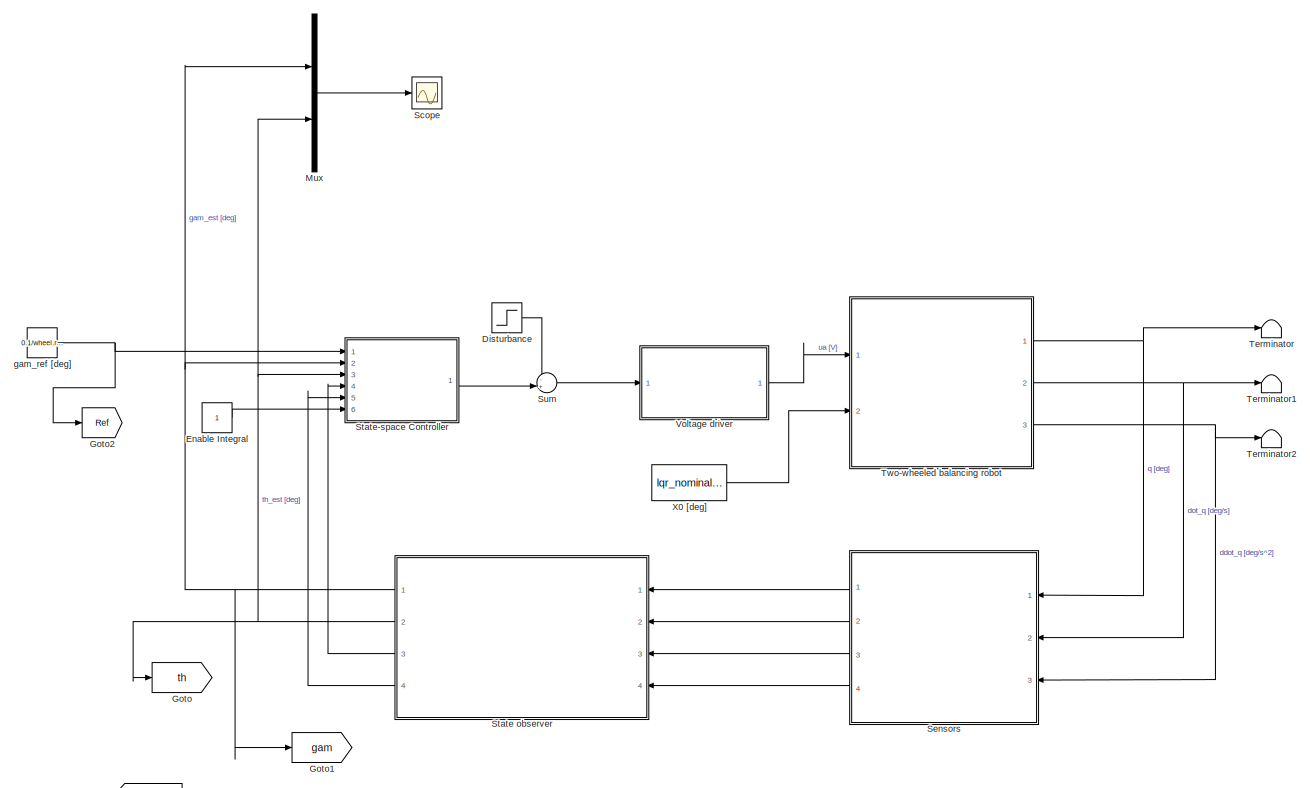
[diagram: root canvas - part 1/2, most of the canvas]
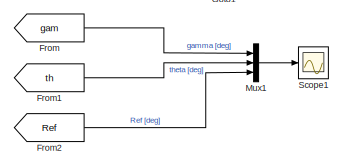
[diagram: root canvas - part 2/2, bottom left region]
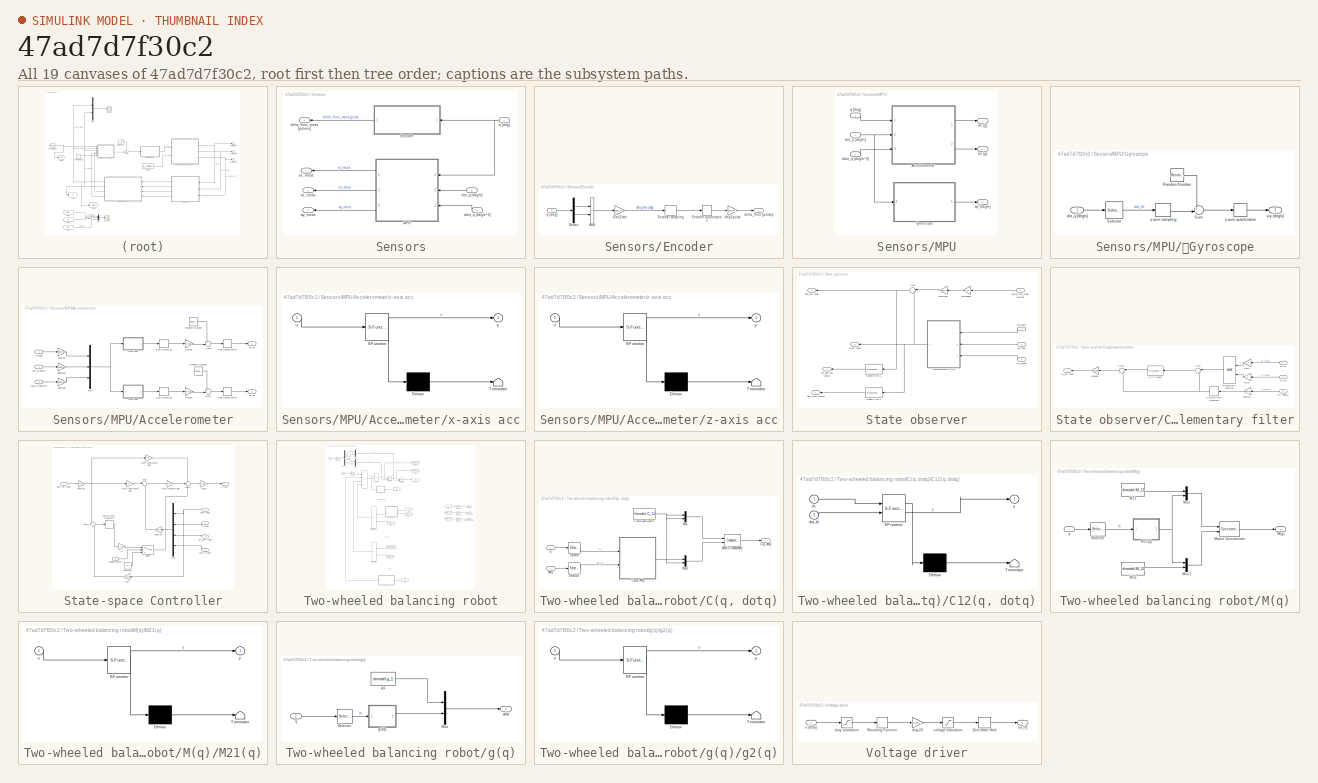
[diagram: thumbnail index - all 19 canvases of the model, root first then tree order]
MODEL slx_47ad7d7f30c2
KIND model
CONFIG AbsTol = auto
CONFIG EnableMultiTasking = off
CONFIG FixedStep = Ts
CONFIG MaxStep = auto
CONFIG MinStep = auto
CONFIG RelTol = 1e-3
CONFIG SampleTimeConstraint = Unconstrained
CONFIG SolverName = FixedStepAuto
CONFIG StartTime = 0.0
CONFIG StopTime = 20
BLOCK [Step] Disturbance
  After = 5/drv.duty2V
  SampleTime = 0
  Time = 10
BLOCK [Constant] Enable Integral
BLOCK [From] From
  GotoTag = gam
BLOCK [From] From1
  GotoTag = th
BLOCK [From] From2
  GotoTag = Ref
BLOCK [Goto] Goto
  GotoTag = th
BLOCK [Goto] Goto1
  GotoTag = gam
BLOCK [Goto] Goto2
  GotoTag = Ref
BLOCK [Mux] Mux
  DisplayOption = bar
  Inputs = 2
  Ports = [2, 1]
BLOCK [Mux] Mux1
  DisplayOption = bar
  Inputs = 3
  Ports = [3, 1]
BLOCK [Scope] Scope
  Floating = off
  NumInputPorts = 1
  Ports = [1]
  ScopeSpecificationString = Simulink.scopes.TimeScopeBlockCfg('CurrentConfiguration', extmgr.ConfigurationSet(extmgr.Configuration('Core','General UI',true),extmgr.Configuration('Core','Source UI',true),extmgr.Configuration('Sources','WiredSimulink',true),extmgr.Configuration('Visuals','Time Domain',true,'SerializedDisplays',{struct('MinYLimReal','-153.10536','MaxYLimReal','1324.52882','YLabelReal','','MinYLimMag',' 0.00000'...<+1457ch>
BLOCK [Scope] Scope1
  Floating = off
  NumInputPorts = 1
  Ports = [1]
  ScopeSpecificationString = Simulink.scopes.TimeScopeBlockCfg('CurrentConfiguration', extmgr.ConfigurationSet(extmgr.Configuration('Core','General UI',true),extmgr.Configuration('Core','Source UI',true),extmgr.Configuration('Sources','WiredSimulink',true,'DataLoggingVariableName','simres','DataLogging',true,'DataLoggingSaveFormat','StructureWithTime'),extmgr.Configuration('Visuals','Time Domain',true,'SerializedDisplays',{st...<+1620ch>
BLOCK [SubSystem] Sensors
  NameLocation = top
  Ports = [3, 4]
  RequestExecContextInheritance = off
BLOCK [SubSystem] Sensors/Encoder
  NameLocation = top
  Ports = [1, 1]
  RequestExecContextInheritance = off
BLOCK [Sum] Sensors/Encoder/Add
  IconShape = rectangular
  Inputs = +-
  Ports = [2, 1]
BLOCK [Demux] Sensors/Encoder/Demux
  Outputs = 2
  Ports = [1, 2]
BLOCK [Quantizer] Sensors/Encoder/Encoder quantization
  QuantizationInterval = sens.enc.pulse2deg
BLOCK [ZeroOrderHold] Sensors/Encoder/Encoder sampling
  SampleTime = Ts
BLOCK [Gain] Sensors/Encoder/deg2pulse
  Gain = sens.enc.deg2pulse
BLOCK [Outport] Sensors/Encoder/delta_throt [pulses]
BLOCK [Gain] Sensors/Encoder/load2mot
  Gain = gbox.N
BLOCK [Inport] Sensors/Encoder/q [deg]
BLOCK [SubSystem] Sensors/MPU
  NameLocation = top
  Ports = [3, 3]
  RequestExecContextInheritance = off
BLOCK [SubSystem] Sensors/MPU/	Gyroscope
  Ports = [1, 1]
  RequestExecContextInheritance = off
BLOCK [RandomNumber] Sensors/MPU/	Gyroscope/Random Number
  SampleTime = Ts
  Variance = sens.mpu.gyro.noisevar
BLOCK [Selector] Sensors/MPU/	Gyroscope/Selector
  IndexOptions = Starting index (dialog)
  Indices = 2
  InputPortWidth = 2
  OutputSizes = 1
  Ports = [1, 1]
BLOCK [Sum] Sensors/MPU/	Gyroscope/Sum
  Inputs = ++|
  Ports = [2, 1]
BLOCK [Inport] Sensors/MPU/	Gyroscope/dot_q [deg//s]
BLOCK [Outport] Sensors/MPU/	Gyroscope/wy [deg//s]
BLOCK [Quantizer] Sensors/MPU/	Gyroscope/y-axis quantization
  QuantizationInterval = sens.mpu.gyro.LSB2degs
BLOCK [ZeroOrderHold] Sensors/MPU/	Gyroscope/y-axis sampling
  SampleTime = Ts
BLOCK [SubSystem] Sensors/MPU/Accelerometer
  Ports = [3, 2]
  RequestExecContextInheritance = off
BLOCK [Mux] Sensors/MPU/Accelerometer/Mux
  DisplayOption = bar
  Inputs = 3
  Ports = [3, 1]
BLOCK [RandomNumber] Sensors/MPU/Accelerometer/Random Number
  SampleTime = Ts
  Variance = sens.mpu.acc.noisevar
BLOCK [RandomNumber] Sensors/MPU/Accelerometer/Random Number1
  SampleTime = Ts
  Variance = sens.mpu.acc.noisevar
BLOCK [Sum] Sensors/MPU/Accelerometer/Sum
  Inputs = ++|
  Ports = [2, 1]
BLOCK [Sum] Sensors/MPU/Accelerometer/Sum1
  Inputs = ++|
  Ports = [2, 1]
BLOCK [Outport] Sensors/MPU/Accelerometer/ax [g]
BLOCK [Outport] Sensors/MPU/Accelerometer/az [g]
  Port = 2
BLOCK [Inport] Sensors/MPU/Accelerometer/ddot_q [deg//s^2]
  Port = 3
BLOCK [Gain] Sensors/MPU/Accelerometer/deg2rad
  Gain = deg2rad
BLOCK [Gain] Sensors/MPU/Accelerometer/deg2rad1
  Gain = deg2rad
BLOCK [Gain] Sensors/MPU/Accelerometer/deg2rad2
  Gain = deg2rad
BLOCK [Inport] Sensors/MPU/Accelerometer/dot_q [deg//s]
  Port = 2
BLOCK [Gain] Sensors/MPU/Accelerometer/ms22g
  Gain = ms22g
BLOCK [Gain] Sensors/MPU/Accelerometer/ms22g1
  Gain = ms22g
BLOCK [Inport] Sensors/MPU/Accelerometer/q [deg]
BLOCK [SubSystem] Sensors/MPU/Accelerometer/x-axis acc
  ErrorFcn = Stateflow.Translate.translate
  PermitHierarchicalResolution = ExplicitOnly
  Ports = [1, 1]
  RequestExecContextInheritance = off
  SFBlockType = MATLAB Function
  TreatAsAtomicUnit = on
BLOCK [Demux] Sensors/MPU/Accelerometer/x-axis acc/ Demux 
  Outputs = 1
  Ports = [1, 1]
BLOCK [S-Function] Sensors/MPU/Accelerometer/x-axis acc/ SFunction 
  EnableBusSupport = on
  FunctionName = sf_sfun
  Parameters = g,sens,wheel
  PortCounts = [1 2]
  Ports = [1, 2]
  SFcnIsStateOwnerBlock = off
  SFunctionDeploymentMode = off
  Tag = Stateflow S-Function 6
BLOCK [Terminator] Sensors/MPU/Accelerometer/x-axis acc/ Terminator 
BLOCK [Inport] Sensors/MPU/Accelerometer/x-axis acc/u
BLOCK [Outport] Sensors/MPU/Accelerometer/x-axis acc/y
BLOCK [Quantizer] Sensors/MPU/Accelerometer/x-axis quantization
  QuantizationInterval = sens.mpu.acc.LSB2g
BLOCK [ZeroOrderHold] Sensors/MPU/Accelerometer/x-axis sampling
  SampleTime = Ts
BLOCK [SubSystem] Sensors/MPU/Accelerometer/z-axis acc
  ErrorFcn = Stateflow.Translate.translate
  PermitHierarchicalResolution = ExplicitOnly
  Ports = [1, 1]
  RequestExecContextInheritance = off
  SFBlockType = MATLAB Function
  TreatAsAtomicUnit = on
BLOCK [Demux] Sensors/MPU/Accelerometer/z-axis acc/ Demux 
  Outputs = 1
  Ports = [1, 1]
BLOCK [S-Function] Sensors/MPU/Accelerometer/z-axis acc/ SFunction 
  EnableBusSupport = on
  FunctionName = sf_sfun
  Parameters = g,sens,wheel
  PortCounts = [1 2]
  Ports = [1, 2]
  SFcnIsStateOwnerBlock = off
  SFunctionDeploymentMode = off
  Tag = Stateflow S-Function 7
BLOCK [Terminator] Sensors/MPU/Accelerometer/z-axis acc/ Terminator 
BLOCK [Inport] Sensors/MPU/Accelerometer/z-axis acc/u
BLOCK [Outport] Sensors/MPU/Accelerometer/z-axis acc/y
BLOCK [Quantizer] Sensors/MPU/Accelerometer/z-axis quantization
  QuantizationInterval = sens.mpu.acc.LSB2g
BLOCK [ZeroOrderHold] Sensors/MPU/Accelerometer/z-axis sampling
  SampleTime = Ts
BLOCK [Outport] Sensors/MPU/ax [g]
BLOCK [Outport] Sensors/MPU/az [g]
  Port = 2
BLOCK [Inport] Sensors/MPU/ddot_q [deg//s^2]
  Port = 3
BLOCK [Inport] Sensors/MPU/dot_q [deg//s]
  Port = 2
BLOCK [Inport] Sensors/MPU/q [deg]
BLOCK [Outport] Sensors/MPU/wy [deg//s]
  Port = 3
BLOCK [Outport] Sensors/ax_meas
  Port = 2
BLOCK [Outport] Sensors/az_meas
  Port = 3
BLOCK [Inport] Sensors/ddot_q [deg//s^2]
  NameLocation = top
  Port = 3
BLOCK [Outport] Sensors/delta_throt_meas [pulses]
BLOCK [Inport] Sensors/dot_q [deg//s]
  NameLocation = top
  Port = 2
BLOCK [Inport] Sensors/q [deg]
  NameLocation = top
BLOCK [Outport] Sensors/wy_meas
  Port = 4
BLOCK [SubSystem] State observer
  NameLocation = top
  Ports = [4, 4]
  RequestExecContextInheritance = off
BLOCK [SubSystem] State observer/Complementary filter
  NameLocation = top
  Ports = [3, 1]
  RequestExecContextInheritance = off
BLOCK [DiscreteIntegrator] State observer/Complementary filter/Discrete-Time Integrator
  ICPrevOutput = DiscIntNeverNeededParam
  ICPrevScaledInput = DiscIntNeverNeededParam
  InitialConditionSetting = Auto
  NameLocation = top
  Ports = [1, 1]
  SampleTime = Ts
BLOCK [Gain] State observer/Complementary filter/Gain
  NameLocation = top
BLOCK [Gain] State observer/Complementary filter/Gain1
  Gain = -1
  NameLocation = top
BLOCK [DiscreteTransferFcn] State observer/Complementary filter/LPF (Proper)
  Denominator = stvar_est.Hz_Den
  InputPortMap = u0
  NameLocation = top
  Numerator = stvar_est.Hz_Num
  Ports = [1, 1]
  SampleTime = Ts
BLOCK [Sum] State observer/Complementary filter/Sum
  Inputs = |+-
  NameLocation = top
  Ports = [2, 1]
BLOCK [Sum] State observer/Complementary filter/Sum1
  Inputs = |++
  NameLocation = top
  Ports = [2, 1]
BLOCK [Trigonometry] State observer/Complementary filter/Trigonometric Function
  NameLocation = top
  Operator = atan2
  Ports = [2, 1]
BLOCK [Inport] State observer/Complementary filter/ax [g]
BLOCK [Inport] State observer/Complementary filter/az [g]
  Port = 2
BLOCK [Gain] State observer/Complementary filter/deg2rad
  Gain = deg2rad
  NameLocation = top
BLOCK [Gain] State observer/Complementary filter/rad2deg
  Gain = rad2deg
  NameLocation = top
BLOCK [Outport] State observer/Complementary filter/th_est [deg]
  NameLocation = top
BLOCK [Inport] State observer/Complementary filter/wy [deg//s]
  Port = 3
BLOCK [DiscreteTransferFcn] State observer/Speed filter 1
  Denominator = stvar_est.realDerivative_Den_z
  InputPortMap = u0
  NameLocation = top
  Numerator = stvar_est.realDerivative_Num_z
  Ports = [1, 1]
  SampleTime = Ts
BLOCK [DiscreteTransferFcn] State observer/Speed filter 2
  Denominator = stvar_est.realDerivative_Den_z
  InputPortMap = u0
  NameLocation = top
  Numerator = stvar_est.realDerivative_Num_z
  Ports = [1, 1]
  SampleTime = Ts
BLOCK [Sum] State observer/Sum
  Inputs = |++
  NameLocation = top
  Ports = [2, 1]
BLOCK [Inport] State observer/ax_meas
  Port = 2
BLOCK [Inport] State observer/az_meas
  Port = 3
BLOCK [Inport] State observer/delta_throt_meas [pulses]
BLOCK [Outport] State observer/dot_gam_est [deg//s]
  NameLocation = top
  Port = 3
BLOCK [Outport] State observer/dot_th_est [deg//s]
  NameLocation = top
  Port = 4
BLOCK [Outport] State observer/gam_est [deg]
  NameLocation = top
BLOCK [Gain] State observer/mot2load
  Gain = 1/gbox.N
  NameLocation = top
BLOCK [Gain] State observer/pulse2deg
  Gain = sens.enc.pulse2deg
  NameLocation = top
BLOCK [Outport] State observer/th_est [deg]
  NameLocation = top
  Port = 2
BLOCK [Inport] State observer/wy_meas
  Port = 4
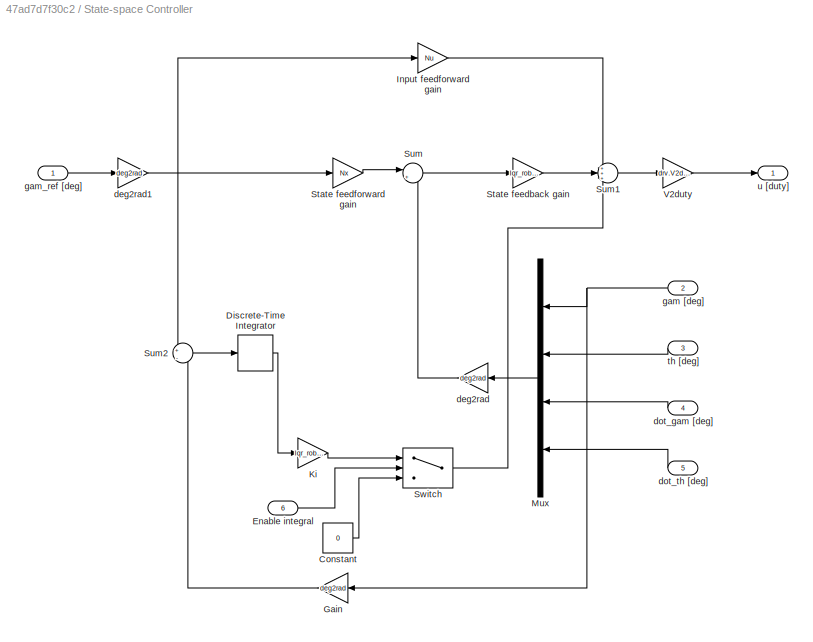
BLOCK [SubSystem] State-space Controller
  Ports = [6, 1]
  RequestExecContextInheritance = off
BLOCK [Constant] State-space Controller/Constant
  Value = 0
BLOCK [DiscreteIntegrator] State-space Controller/Discrete-Time Integrator
  ICPrevOutput = DiscIntNeverNeededParam
  ICPrevScaledInput = DiscIntNeverNeededParam
  InitialConditionSetting = Auto
  IntegratorMethod = Accumulation: Forward Euler
  Ports = [1, 1]
  SampleTime = Ts
BLOCK [Inport] State-space Controller/Enable integral
  Port = 6
BLOCK [Gain] State-space Controller/Gain
  Gain = deg2rad
  NameLocation = top
BLOCK [Gain] State-space Controller/Input feedforward gain
  Gain = Nu
BLOCK [Gain] State-space Controller/Ki
  Gain = lqr_robust.Ki_2
BLOCK [Mux] State-space Controller/Mux
  DisplayOption = bar
  NameLocation = top
  Ports = [4, 1]
BLOCK [Gain] State-space Controller/State feedback gain
  Gain = lqr_robust.K_2
  Multiplication = Matrix(K*u)
BLOCK [Gain] State-space Controller/State feedforward gain
  Gain = Nx
BLOCK [Sum] State-space Controller/Sum
  Inputs = |+-
  Ports = [2, 1]
BLOCK [Sum] State-space Controller/Sum1
  Inputs = +++
  Ports = [3, 1]
BLOCK [Sum] State-space Controller/Sum2
  Inputs = +|-
  Ports = [2, 1]
BLOCK [Switch] State-space Controller/Switch
  Criteria = u2 > Threshold
  InputSameDT = off
  SaturateOnIntegerOverflow = off
BLOCK [Gain] State-space Controller/V2duty
  Gain = drv.V2duty
BLOCK [Gain] State-space Controller/deg2rad
  Gain = deg2rad
  NameLocation = top
BLOCK [Gain] State-space Controller/deg2rad1
  Gain = deg2rad
BLOCK [Inport] State-space Controller/dot_gam [deg]
  NameLocation = top
  Port = 4
BLOCK [Inport] State-space Controller/dot_th [deg]
  NameLocation = top
  Port = 5
BLOCK [Inport] State-space Controller/gam [deg]
  NameLocation = top
  Port = 2
BLOCK [Inport] State-space Controller/gam_ref [deg]
BLOCK [Inport] State-space Controller/th [deg]
  NameLocation = top
  Port = 3
BLOCK [Outport] State-space Controller/u [duty]
BLOCK [Sum] Sum
  Inputs = -+|
  Ports = [2, 1]
BLOCK [Terminator] Terminator
BLOCK [Terminator] Terminator1
BLOCK [Terminator] Terminator2
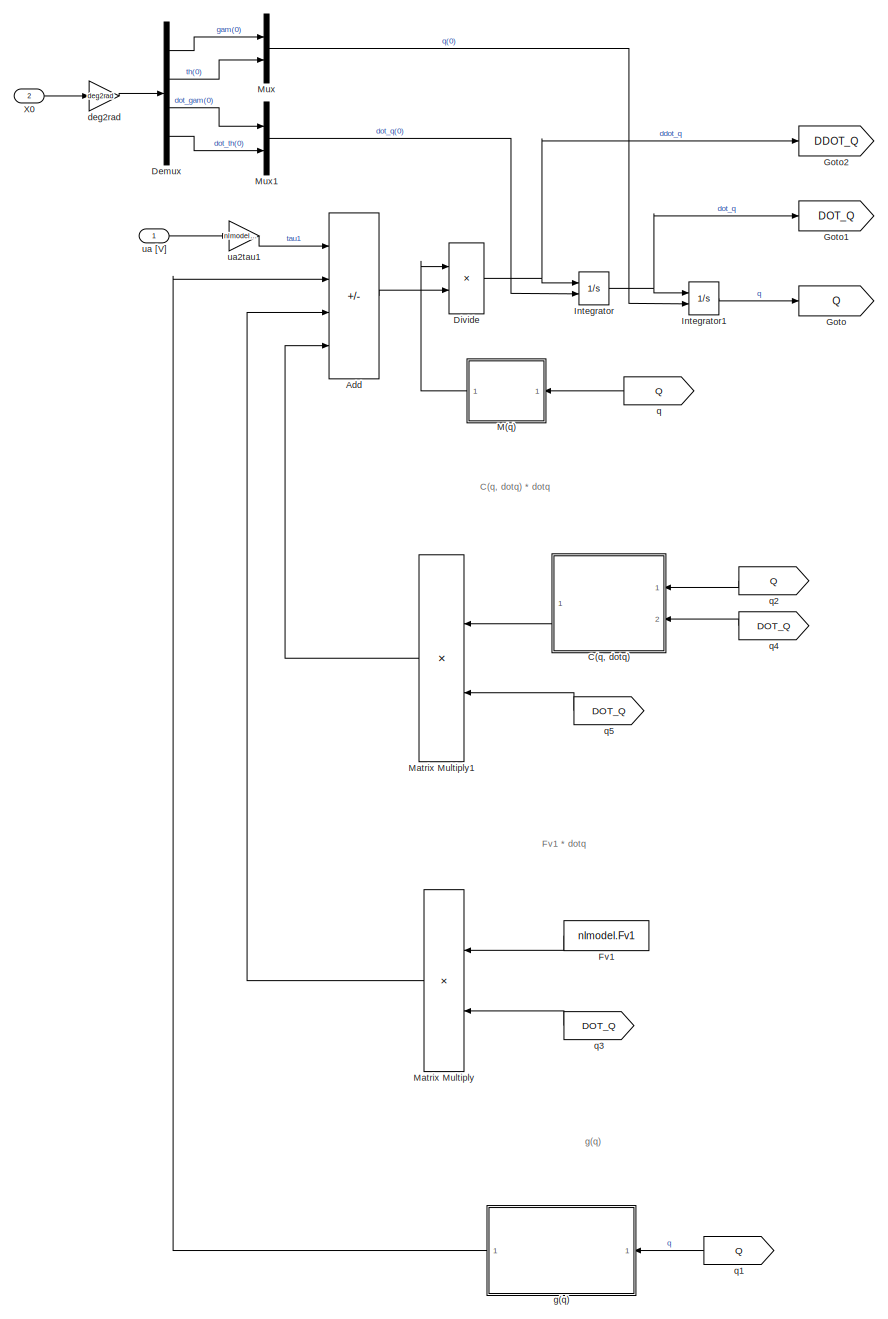
[diagram: Two-wheeled balancing robot - part 1/2, left side, full height]
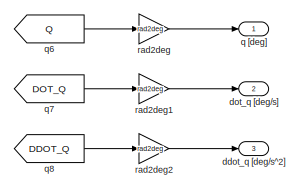
[diagram: Two-wheeled balancing robot - part 2/2, middle right region]
BLOCK [SubSystem] Two-wheeled balancing robot
  Ports = [2, 3]
  RequestExecContextInheritance = off
BLOCK [Sum] Two-wheeled balancing robot/Add
  IconShape = rectangular
  Inputs = +---
  Ports = [4, 1]
BLOCK [SubSystem] Two-wheeled balancing robot/C(q, dotq)
  NameLocation = top
  Ports = [2, 1]
  RequestExecContextInheritance = off
BLOCK [Outport] Two-wheeled balancing robot/C(q, dotq)/C(q, dotq)
BLOCK [Constant] Two-wheeled balancing robot/C(q, dotq)/C11=C21=C22=0
  Value = nlmodel.C_11
BLOCK [SubSystem] Two-wheeled balancing robot/C(q, dotq)/C12(q, dotq)
  ErrorFcn = Stateflow.Translate.translate
  PermitHierarchicalResolution = ExplicitOnly
  Ports = [2, 1]
  RequestExecContextInheritance = off
  SFBlockType = MATLAB Function
  TreatAsAtomicUnit = on
BLOCK [Demux] Two-wheeled balancing robot/C(q, dotq)/C12(q, dotq)/ Demux 
  Outputs = 1
  Ports = [1, 1]
BLOCK [S-Function] Two-wheeled balancing robot/C(q, dotq)/C12(q, dotq)/ SFunction 
  EnableBusSupport = on
  FunctionName = sf_sfun
  Parameters = body,mot,wheel
  PortCounts = [2 2]
  Ports = [2, 2]
  SFcnIsStateOwnerBlock = off
  SFunctionDeploymentMode = off
  Tag = Stateflow S-Function 2
BLOCK [Terminator] Two-wheeled balancing robot/C(q, dotq)/C12(q, dotq)/ Terminator 
BLOCK [Inport] Two-wheeled balancing robot/C(q, dotq)/C12(q, dotq)/dot_th
  Port = 2
BLOCK [Inport] Two-wheeled balancing robot/C(q, dotq)/C12(q, dotq)/th
BLOCK [Outport] Two-wheeled balancing robot/C(q, dotq)/C12(q, dotq)/y
BLOCK [Concatenate] Two-wheeled balancing robot/C(q, dotq)/Matrix Concatenate
  ConcatenateDimension = 2
  Mode = Multidimensional array
  Ports = [2, 1]
BLOCK [Mux] Two-wheeled balancing robot/C(q, dotq)/Mux
  DisplayOption = bar
  Inputs = 2
  Ports = [2, 1]
BLOCK [Mux] Two-wheeled balancing robot/C(q, dotq)/Mux1
  DisplayOption = bar
  Inputs = 2
  Ports = [2, 1]
BLOCK [Selector] Two-wheeled balancing robot/C(q, dotq)/Selector
  IndexOptions = Starting index (dialog)
  Indices = 2
  InputPortWidth = 2
  OutputSizes = 1
  Ports = [1, 1]
BLOCK [Selector] Two-wheeled balancing robot/C(q, dotq)/Selector1
  IndexOptions = Starting index (dialog)
  Indices = 2
  InputPortWidth = 2
  OutputSizes = 1
  Ports = [1, 1]
BLOCK [Inport] Two-wheeled balancing robot/C(q, dotq)/dotq
  Port = 2
BLOCK [Inport] Two-wheeled balancing robot/C(q, dotq)/q
BLOCK [Demux] Two-wheeled balancing robot/Demux
  Ports = [1, 4]
BLOCK [Product] Two-wheeled balancing robot/Divide
  Inputs = /*
  Multiplication = Matrix(*)
  Ports = [2, 1]
BLOCK [Constant] Two-wheeled balancing robot/Fv1
  NameLocation = top
  Value = nlmodel.Fv1
BLOCK [Goto] Two-wheeled balancing robot/Goto
  GotoTag = Q
BLOCK [Goto] Two-wheeled balancing robot/Goto1
  GotoTag = DOT_Q
BLOCK [Goto] Two-wheeled balancing robot/Goto2
  GotoTag = DDOT_Q
BLOCK [Integrator] Two-wheeled balancing robot/Integrator
  InitialCondition = [0;0]
  InitialConditionSource = external
  Ports = [2, 1]
BLOCK [Integrator] Two-wheeled balancing robot/Integrator1
  InitialCondition = [0; 0]
  InitialConditionSource = external
  Ports = [2, 1]
BLOCK [SubSystem] Two-wheeled balancing robot/M(q)
  NameLocation = top
  Ports = [1, 1]
  RequestExecContextInheritance = off
BLOCK [Outport] Two-wheeled balancing robot/M(q)/M(q)
BLOCK [Constant] Two-wheeled balancing robot/M(q)/M11
  Value = nlmodel.M_11
BLOCK [SubSystem] Two-wheeled balancing robot/M(q)/M21(q)
  ErrorFcn = Stateflow.Translate.translate
  PermitHierarchicalResolution = ExplicitOnly
  Ports = [1, 1]
  RequestExecContextInheritance = off
  SFBlockType = MATLAB Function
  TreatAsAtomicUnit = on
BLOCK [Demux] Two-wheeled balancing robot/M(q)/M21(q)/ Demux 
  Outputs = 1
  Ports = [1, 1]
BLOCK [S-Function] Two-wheeled balancing robot/M(q)/M21(q)/ SFunction 
  EnableBusSupport = on
  FunctionName = sf_sfun
  Parameters = body,gbox,mot,wheel
  PortCounts = [1 2]
  Ports = [1, 2]
  SFcnIsStateOwnerBlock = off
  SFunctionDeploymentMode = off
  Tag = Stateflow S-Function 4
BLOCK [Terminator] Two-wheeled balancing robot/M(q)/M21(q)/ Terminator 
BLOCK [Inport] Two-wheeled balancing robot/M(q)/M21(q)/u
BLOCK [Outport] Two-wheeled balancing robot/M(q)/M21(q)/y
BLOCK [Constant] Two-wheeled balancing robot/M(q)/M22
  Value = nlmodel.M_22
BLOCK [Concatenate] Two-wheeled balancing robot/M(q)/Matrix Concatenate
  ConcatenateDimension = 2
  Mode = Multidimensional array
  Ports = [2, 1]
BLOCK [Mux] Two-wheeled balancing robot/M(q)/Mux
  DisplayOption = bar
  Inputs = 2
  Ports = [2, 1]
BLOCK [Mux] Two-wheeled balancing robot/M(q)/Mux1
  DisplayOption = bar
  Inputs = 2
  Ports = [2, 1]
BLOCK [Selector] Two-wheeled balancing robot/M(q)/Selector
  IndexOptions = Starting index (dialog)
  Indices = 2
  InputPortWidth = 2
  OutputSizes = 1
  Ports = [1, 1]
BLOCK [Inport] Two-wheeled balancing robot/M(q)/q
BLOCK [Product] Two-wheeled balancing robot/Matrix Multiply
  Multiplication = Matrix(*)
  NameLocation = top
  Ports = [2, 1]
BLOCK [Product] Two-wheeled balancing robot/Matrix Multiply1
  Multiplication = Matrix(*)
  NameLocation = top
  Ports = [2, 1]
BLOCK [Mux] Two-wheeled balancing robot/Mux
  DisplayOption = bar
  Inputs = 2
  Ports = [2, 1]
BLOCK [Mux] Two-wheeled balancing robot/Mux1
  DisplayOption = bar
  Inputs = 2
  Ports = [2, 1]
BLOCK [Inport] Two-wheeled balancing robot/X0
  Port = 2
BLOCK [Outport] Two-wheeled balancing robot/ddot_q [deg//s^2]
  Port = 3
BLOCK [Gain] Two-wheeled balancing robot/deg2rad
  Gain = deg2rad
BLOCK [Outport] Two-wheeled balancing robot/dot_q [deg//s]
  Port = 2
BLOCK [SubSystem] Two-wheeled balancing robot/g(q)
  NameLocation = top
  Ports = [1, 1]
  RequestExecContextInheritance = off
BLOCK [Mux] Two-wheeled balancing robot/g(q)/Mux
  DisplayOption = bar
  Inputs = 2
  Ports = [2, 1]
BLOCK [Selector] Two-wheeled balancing robot/g(q)/Selector
  IndexOptions = Starting index (dialog)
  Indices = 2
  InputPortWidth = 2
  OutputSizes = 1
  Ports = [1, 1]
BLOCK [Outport] Two-wheeled balancing robot/g(q)/g(q)
BLOCK [Constant] Two-wheeled balancing robot/g(q)/g1
  Value = nlmodel.g_1
BLOCK [SubSystem] Two-wheeled balancing robot/g(q)/g2(q)
  ErrorFcn = Stateflow.Translate.translate
  PermitHierarchicalResolution = ExplicitOnly
  Ports = [1, 1]
  RequestExecContextInheritance = off
  SFBlockType = MATLAB Function
  TreatAsAtomicUnit = on
BLOCK [Demux] Two-wheeled balancing robot/g(q)/g2(q)/ Demux 
  Outputs = 1
  Ports = [1, 1]
BLOCK [S-Function] Two-wheeled balancing robot/g(q)/g2(q)/ SFunction 
  EnableBusSupport = on
  FunctionName = sf_sfun
  Parameters = body,g,mot
  PortCounts = [1 2]
  Ports = [1, 2]
  SFcnIsStateOwnerBlock = off
  SFunctionDeploymentMode = off
  Tag = Stateflow S-Function 1
BLOCK [Terminator] Two-wheeled balancing robot/g(q)/g2(q)/ Terminator 
BLOCK [Inport] Two-wheeled balancing robot/g(q)/g2(q)/u
BLOCK [Outport] Two-wheeled balancing robot/g(q)/g2(q)/y
BLOCK [Inport] Two-wheeled balancing robot/g(q)/q
BLOCK [From] Two-wheeled balancing robot/q
  GotoTag = Q
  NameLocation = top
BLOCK [Outport] Two-wheeled balancing robot/q [deg]
BLOCK [From] Two-wheeled balancing robot/q1
  GotoTag = Q
  NameLocation = top
BLOCK [From] Two-wheeled balancing robot/q2
  GotoTag = Q
  NameLocation = top
BLOCK [From] Two-wheeled balancing robot/q3
  GotoTag = DOT_Q
  NameLocation = top
BLOCK [From] Two-wheeled balancing robot/q4
  GotoTag = DOT_Q
  NameLocation = top
BLOCK [From] Two-wheeled balancing robot/q5
  GotoTag = DOT_Q
  NameLocation = top
BLOCK [From] Two-wheeled balancing robot/q6
  GotoTag = Q
BLOCK [From] Two-wheeled balancing robot/q7
  GotoTag = DOT_Q
BLOCK [From] Two-wheeled balancing robot/q8
  GotoTag = DDOT_Q
BLOCK [Gain] Two-wheeled balancing robot/rad2deg
  Gain = rad2deg
BLOCK [Gain] Two-wheeled balancing robot/rad2deg1
  Gain = rad2deg
BLOCK [Gain] Two-wheeled balancing robot/rad2deg2
  Gain = rad2deg
BLOCK [Inport] Two-wheeled balancing robot/ua [V]
BLOCK [Gain] Two-wheeled balancing robot/ua2tau1
  Gain = nlmodel.ua2tau1
BLOCK [SubSystem] Voltage driver
  Ports = [1, 1]
  RequestExecContextInheritance = off
BLOCK [Rounding] Voltage driver/Rounding Function
  Operator = fix
BLOCK [ZeroOrderHold] Voltage driver/Zero-Order Hold
  SampleTime = Ts
BLOCK [Saturate] Voltage driver/duty saturation
  LowerLimit = -drv.dutymax
  UpperLimit = drv.dutymax
BLOCK [Gain] Voltage driver/duty2V
  Gain = drv.duty2V
BLOCK [Inport] Voltage driver/u [duty]
BLOCK [Outport] Voltage driver/ua [V]
BLOCK [Saturate] Voltage driver/voltage saturation
  LowerLimit = -drv.Vbus
  UpperLimit = drv.Vbus
BLOCK [Constant] X0 [deg]
  Value = lqr_nominal.x0
BLOCK [Constant] gam_ref [deg]
  Value = 0.1/wheel.r*rad2deg
ANNOTATION Two-wheeled balancing robot: g(q)
ANNOTATION Two-wheeled balancing robot: C(q, dotq) * dotq
ANNOTATION Two-wheeled balancing robot: Fv1 * dotq
LINE Disturbance:1 -> Sum:1
LINE Enable Integral:1 -> State-space Controller:6
LINE From1:1 -> Mux1:2
LINE From2:1 -> Mux1:3
LINE From:1 -> Mux1:1
LINE Mux1:1 -> Scope1:1
LINE Mux:1 -> Scope:1
LINE Sensors/Encoder/Add:1 -> Sensors/Encoder/load2mot:1
LINE Sensors/Encoder/Demux:1 -> Sensors/Encoder/Add:1
LINE Sensors/Encoder/Demux:2 -> Sensors/Encoder/Add:2
LINE Sensors/Encoder/Encoder quantization:1 -> Sensors/Encoder/deg2pulse:1
LINE Sensors/Encoder/Encoder sampling:1 -> Sensors/Encoder/Encoder quantization:1
LINE Sensors/Encoder/deg2pulse:1 -> Sensors/Encoder/delta_throt [pulses]:1
LINE Sensors/Encoder/load2mot:1 -> Sensors/Encoder/Encoder sampling:1
LINE Sensors/Encoder/q [deg]:1 -> Sensors/Encoder/Demux:1
LINE Sensors/Encoder:1 -> Sensors/delta_throt_meas [pulses]:1
LINE Sensors/MPU/	Gyroscope/Random Number:1 -> Sensors/MPU/	Gyroscope/Sum:1
LINE Sensors/MPU/	Gyroscope/Selector:1 -> Sensors/MPU/	Gyroscope/y-axis sampling:1
LINE Sensors/MPU/	Gyroscope/Sum:1 -> Sensors/MPU/	Gyroscope/y-axis quantization:1
LINE Sensors/MPU/	Gyroscope/dot_q [deg//s]:1 -> Sensors/MPU/	Gyroscope/Selector:1
LINE Sensors/MPU/	Gyroscope/y-axis quantization:1 -> Sensors/MPU/	Gyroscope/wy [deg//s]:1
LINE Sensors/MPU/	Gyroscope/y-axis sampling:1 -> Sensors/MPU/	Gyroscope/Sum:2
LINE Sensors/MPU/	Gyroscope:1 -> Sensors/MPU/wy [deg//s]:1
NET Sensors/MPU/Accelerometer/Mux:1 -> Sensors/MPU/Accelerometer/x-axis acc:1, Sensors/MPU/Accelerometer/z-axis acc:1
LINE Sensors/MPU/Accelerometer/Random Number1:1 -> Sensors/MPU/Accelerometer/Sum1:1
LINE Sensors/MPU/Accelerometer/Random Number:1 -> Sensors/MPU/Accelerometer/Sum:1
LINE Sensors/MPU/Accelerometer/Sum1:1 -> Sensors/MPU/Accelerometer/z-axis quantization:1
LINE Sensors/MPU/Accelerometer/Sum:1 -> Sensors/MPU/Accelerometer/x-axis quantization:1
LINE Sensors/MPU/Accelerometer/ddot_q [deg//s^2]:1 -> Sensors/MPU/Accelerometer/deg2rad2:1
LINE Sensors/MPU/Accelerometer/deg2rad1:1 -> Sensors/MPU/Accelerometer/Mux:2
LINE Sensors/MPU/Accelerometer/deg2rad2:1 -> Sensors/MPU/Accelerometer/Mux:3
LINE Sensors/MPU/Accelerometer/deg2rad:1 -> Sensors/MPU/Accelerometer/Mux:1
LINE Sensors/MPU/Accelerometer/dot_q [deg//s]:1 -> Sensors/MPU/Accelerometer/deg2rad1:1
LINE Sensors/MPU/Accelerometer/ms22g1:1 -> Sensors/MPU/Accelerometer/Sum1:2
LINE Sensors/MPU/Accelerometer/ms22g:1 -> Sensors/MPU/Accelerometer/Sum:2
LINE Sensors/MPU/Accelerometer/q [deg]:1 -> Sensors/MPU/Accelerometer/deg2rad:1
LINE Sensors/MPU/Accelerometer/x-axis acc:1 -> Sensors/MPU/Accelerometer/x-axis sampling:1
LINE Sensors/MPU/Accelerometer/x-axis quantization:1 -> Sensors/MPU/Accelerometer/ax [g]:1
LINE Sensors/MPU/Accelerometer/x-axis sampling:1 -> Sensors/MPU/Accelerometer/ms22g:1
LINE Sensors/MPU/Accelerometer/z-axis acc:1 -> Sensors/MPU/Accelerometer/z-axis sampling:1
LINE Sensors/MPU/Accelerometer/z-axis quantization:1 -> Sensors/MPU/Accelerometer/az [g]:1
LINE Sensors/MPU/Accelerometer/z-axis sampling:1 -> Sensors/MPU/Accelerometer/ms22g1:1
LINE Sensors/MPU/Accelerometer:1 -> Sensors/MPU/ax [g]:1
LINE Sensors/MPU/Accelerometer:2 -> Sensors/MPU/az [g]:1
LINE Sensors/MPU/ddot_q [deg//s^2]:1 -> Sensors/MPU/Accelerometer:3
NET Sensors/MPU/dot_q [deg//s]:1 -> Sensors/MPU/	Gyroscope:1, Sensors/MPU/Accelerometer:2
LINE Sensors/MPU/q [deg]:1 -> Sensors/MPU/Accelerometer:1
LINE Sensors/MPU:1 -> Sensors/ax_meas:1
LINE Sensors/MPU:2 -> Sensors/az_meas:1
LINE Sensors/MPU:3 -> Sensors/wy_meas:1
LINE Sensors/ddot_q [deg//s^2]:1 -> Sensors/MPU:3
LINE Sensors/dot_q [deg//s]:1 -> Sensors/MPU:2
NET Sensors/q [deg]:1 -> Sensors/Encoder:1, Sensors/MPU:1
LINE Sensors:1 -> State observer:1
LINE Sensors:2 -> State observer:2
LINE Sensors:3 -> State observer:3
LINE Sensors:4 -> State observer:4
NET State observer/Complementary filter/Discrete-Time Integrator:1 -> State observer/Complementary filter/Sum1:2, State observer/Complementary filter/Sum:2
LINE State observer/Complementary filter/Gain1:1 -> State observer/Complementary filter/Trigonometric Function:2
LINE State observer/Complementary filter/Gain:1 -> State observer/Complementary filter/Trigonometric Function:1
LINE State observer/Complementary filter/LPF (Proper):1 -> State observer/Complementary filter/Sum1:1
LINE State observer/Complementary filter/Sum1:1 -> State observer/Complementary filter/rad2deg:1
LINE State observer/Complementary filter/Sum:1 -> State observer/Complementary filter/LPF (Proper):1
LINE State observer/Complementary filter/Trigonometric Function:1 -> State observer/Complementary filter/Sum:1
LINE State observer/Complementary filter/ax [g]:1 -> State observer/Complementary filter/Gain:1
LINE State observer/Complementary filter/az [g]:1 -> State observer/Complementary filter/Gain1:1
LINE State observer/Complementary filter/deg2rad:1 -> State observer/Complementary filter/Discrete-Time Integrator:1
LINE State observer/Complementary filter/rad2deg:1 -> State observer/Complementary filter/th_est [deg]:1
LINE State observer/Complementary filter/wy [deg//s]:1 -> State observer/Complementary filter/deg2rad:1
NET State observer/Complementary filter:1 -> State observer/Speed filter 2:1, State observer/Sum:2, State observer/th_est [deg]:1
LINE State observer/Speed filter 1:1 -> State observer/dot_gam_est [deg//s]:1
LINE State observer/Speed filter 2:1 -> State observer/dot_th_est [deg//s]:1
NET State observer/Sum:1 -> State observer/Speed filter 1:1, State observer/gam_est [deg]:1
LINE State observer/ax_meas:1 -> State observer/Complementary filter:1
LINE State observer/az_meas:1 -> State observer/Complementary filter:2
LINE State observer/delta_throt_meas [pulses]:1 -> State observer/pulse2deg:1
LINE State observer/mot2load:1 -> State observer/Sum:1
LINE State observer/pulse2deg:1 -> State observer/mot2load:1
LINE State observer/wy_meas:1 -> State observer/Complementary filter:3
NET State observer:1 -> Goto1:1, Mux:1, State-space Controller:2
NET State observer:2 -> Goto:1, Mux:2, State-space Controller:3
LINE State observer:3 -> State-space Controller:4
LINE State observer:4 -> State-space Controller:5
LINE State-space Controller/Constant:1 -> State-space Controller/Switch:3
LINE State-space Controller/Discrete-Time Integrator:1 -> State-space Controller/Ki:1
LINE State-space Controller/Enable integral:1 -> State-space Controller/Switch:2
LINE State-space Controller/Gain:1 -> State-space Controller/Sum2:2
LINE State-space Controller/Input feedforward gain:1 -> State-space Controller/Sum1:1
LINE State-space Controller/Ki:1 -> State-space Controller/Switch:1
LINE State-space Controller/Mux:1 -> State-space Controller/deg2rad:1
LINE State-space Controller/State feedback gain:1 -> State-space Controller/Sum1:2
LINE State-space Controller/State feedforward gain:1 -> State-space Controller/Sum:1
LINE State-space Controller/Sum1:1 -> State-space Controller/V2duty:1
LINE State-space Controller/Sum2:1 -> State-space Controller/Discrete-Time Integrator:1
LINE State-space Controller/Sum:1 -> State-space Controller/State feedback gain:1
LINE State-space Controller/Switch:1 -> State-space Controller/Sum1:3
LINE State-space Controller/V2duty:1 -> State-space Controller/u [duty]:1
NET State-space Controller/deg2rad1:1 -> State-space Controller/Input feedforward gain:1, State-space Controller/State feedforward gain:1, State-space Controller/Sum2:1
LINE State-space Controller/deg2rad:1 -> State-space Controller/Sum:2
LINE State-space Controller/dot_gam [deg]:1 -> State-space Controller/Mux:3
LINE State-space Controller/dot_th [deg]:1 -> State-space Controller/Mux:4
NET State-space Controller/gam [deg]:1 -> State-space Controller/Gain:1, State-space Controller/Mux:1
LINE State-space Controller/gam_ref [deg]:1 -> State-space Controller/deg2rad1:1
LINE State-space Controller/th [deg]:1 -> State-space Controller/Mux:2
LINE State-space Controller:1 -> Sum:2
LINE Sum:1 -> Voltage driver:1
LINE Two-wheeled balancing robot/Add:1 -> Two-wheeled balancing robot/Divide:2
NET Two-wheeled balancing robot/C(q, dotq)/C11=C21=C22=0:1 -> Two-wheeled balancing robot/C(q, dotq)/Mux1:2, Two-wheeled balancing robot/C(q, dotq)/Mux:1, Two-wheeled balancing robot/C(q, dotq)/Mux:2
LINE Two-wheeled balancing robot/C(q, dotq)/C12(q, dotq):1 -> Two-wheeled balancing robot/C(q, dotq)/Mux1:1
LINE Two-wheeled balancing robot/C(q, dotq)/Matrix Concatenate:1 -> Two-wheeled balancing robot/C(q, dotq)/C(q, dotq):1
LINE Two-wheeled balancing robot/C(q, dotq)/Mux1:1 -> Two-wheeled balancing robot/C(q, dotq)/Matrix Concatenate:2
LINE Two-wheeled balancing robot/C(q, dotq)/Mux:1 -> Two-wheeled balancing robot/C(q, dotq)/Matrix Concatenate:1
LINE Two-wheeled balancing robot/C(q, dotq)/Selector1:1 -> Two-wheeled balancing robot/C(q, dotq)/C12(q, dotq):2
LINE Two-wheeled balancing robot/C(q, dotq)/Selector:1 -> Two-wheeled balancing robot/C(q, dotq)/C12(q, dotq):1
LINE Two-wheeled balancing robot/C(q, dotq)/dotq:1 -> Two-wheeled balancing robot/C(q, dotq)/Selector1:1
LINE Two-wheeled balancing robot/C(q, dotq)/q:1 -> Two-wheeled balancing robot/C(q, dotq)/Selector:1
LINE Two-wheeled balancing robot/C(q, dotq):1 -> Two-wheeled balancing robot/Matrix Multiply1:1
LINE Two-wheeled balancing robot/Demux:1 -> Two-wheeled balancing robot/Mux:1
LINE Two-wheeled balancing robot/Demux:2 -> Two-wheeled balancing robot/Mux:2
LINE Two-wheeled balancing robot/Demux:3 -> Two-wheeled balancing robot/Mux1:1
LINE Two-wheeled balancing robot/Demux:4 -> Two-wheeled balancing robot/Mux1:2
NET Two-wheeled balancing robot/Divide:1 -> Two-wheeled balancing robot/Goto2:1, Two-wheeled balancing robot/Integrator:1
LINE Two-wheeled balancing robot/Fv1:1 -> Two-wheeled balancing robot/Matrix Multiply:1
LINE Two-wheeled balancing robot/Integrator1:1 -> Two-wheeled balancing robot/Goto:1
NET Two-wheeled balancing robot/Integrator:1 -> Two-wheeled balancing robot/Goto1:1, Two-wheeled balancing robot/Integrator1:1
LINE Two-wheeled balancing robot/M(q)/M11:1 -> Two-wheeled balancing robot/M(q)/Mux:1
NET Two-wheeled balancing robot/M(q)/M21(q):1 -> Two-wheeled balancing robot/M(q)/Mux1:1, Two-wheeled balancing robot/M(q)/Mux:2
LINE Two-wheeled balancing robot/M(q)/M22:1 -> Two-wheeled balancing robot/M(q)/Mux1:2
LINE Two-wheeled balancing robot/M(q)/Matrix Concatenate:1 -> Two-wheeled balancing robot/M(q)/M(q):1
LINE Two-wheeled balancing robot/M(q)/Mux1:1 -> Two-wheeled balancing robot/M(q)/Matrix Concatenate:2
LINE Two-wheeled balancing robot/M(q)/Mux:1 -> Two-wheeled balancing robot/M(q)/Matrix Concatenate:1
LINE Two-wheeled balancing robot/M(q)/Selector:1 -> Two-wheeled balancing robot/M(q)/M21(q):1
LINE Two-wheeled balancing robot/M(q)/q:1 -> Two-wheeled balancing robot/M(q)/Selector:1
LINE Two-wheeled balancing robot/M(q):1 -> Two-wheeled balancing robot/Divide:1
LINE Two-wheeled balancing robot/Matrix Multiply1:1 -> Two-wheeled balancing robot/Add:4
LINE Two-wheeled balancing robot/Matrix Multiply:1 -> Two-wheeled balancing robot/Add:3
LINE Two-wheeled balancing robot/Mux1:1 -> Two-wheeled balancing robot/Integrator:2
LINE Two-wheeled balancing robot/Mux:1 -> Two-wheeled balancing robot/Integrator1:2
LINE Two-wheeled balancing robot/X0:1 -> Two-wheeled balancing robot/deg2rad:1
LINE Two-wheeled balancing robot/deg2rad:1 -> Two-wheeled balancing robot/Demux:1
LINE Two-wheeled balancing robot/g(q)/Mux:1 -> Two-wheeled balancing robot/g(q)/g(q):1
LINE Two-wheeled balancing robot/g(q)/Selector:1 -> Two-wheeled balancing robot/g(q)/g2(q):1
LINE Two-wheeled balancing robot/g(q)/g1:1 -> Two-wheeled balancing robot/g(q)/Mux:1
LINE Two-wheeled balancing robot/g(q)/g2(q):1 -> Two-wheeled balancing robot/g(q)/Mux:2
LINE Two-wheeled balancing robot/g(q)/q:1 -> Two-wheeled balancing robot/g(q)/Selector:1
LINE Two-wheeled balancing robot/g(q):1 -> Two-wheeled balancing robot/Add:2
LINE Two-wheeled balancing robot/q1:1 -> Two-wheeled balancing robot/g(q):1
LINE Two-wheeled balancing robot/q2:1 -> Two-wheeled balancing robot/C(q, dotq):1
LINE Two-wheeled balancing robot/q3:1 -> Two-wheeled balancing robot/Matrix Multiply:2
LINE Two-wheeled balancing robot/q4:1 -> Two-wheeled balancing robot/C(q, dotq):2
LINE Two-wheeled balancing robot/q5:1 -> Two-wheeled balancing robot/Matrix Multiply1:2
LINE Two-wheeled balancing robot/q6:1 -> Two-wheeled balancing robot/rad2deg:1
LINE Two-wheeled balancing robot/q7:1 -> Two-wheeled balancing robot/rad2deg1:1
LINE Two-wheeled balancing robot/q8:1 -> Two-wheeled balancing robot/rad2deg2:1
LINE Two-wheeled balancing robot/q:1 -> Two-wheeled balancing robot/M(q):1
LINE Two-wheeled balancing robot/rad2deg1:1 -> Two-wheeled balancing robot/dot_q [deg//s]:1
LINE Two-wheeled balancing robot/rad2deg2:1 -> Two-wheeled balancing robot/ddot_q [deg//s^2]:1
LINE Two-wheeled balancing robot/rad2deg:1 -> Two-wheeled balancing robot/q [deg]:1
LINE Two-wheeled balancing robot/ua [V]:1 -> Two-wheeled balancing robot/ua2tau1:1
LINE Two-wheeled balancing robot/ua2tau1:1 -> Two-wheeled balancing robot/Add:1
NET Two-wheeled balancing robot:1 -> Sensors:1, Terminator:1
NET Two-wheeled balancing robot:2 -> Sensors:2, Terminator1:1
NET Two-wheeled balancing robot:3 -> Sensors:3, Terminator2:1
LINE Voltage driver/Rounding Function:1 -> Voltage driver/duty2V:1
LINE Voltage driver/Zero-Order Hold:1 -> Voltage driver/ua [V]:1
LINE Voltage driver/duty saturation:1 -> Voltage driver/Rounding Function:1
LINE Voltage driver/duty2V:1 -> Voltage driver/voltage saturation:1
LINE Voltage driver/u [duty]:1 -> Voltage driver/duty saturation:1
LINE Voltage driver/voltage saturation:1 -> Voltage driver/Zero-Order Hold:1
LINE Voltage driver:1 -> Two-wheeled balancing robot:1
LINE X0 [deg]:1 -> Two-wheeled balancing robot:2
NET gam_ref [deg]:1 -> Goto2:1, State-space Controller:1
note: NET lines group one-source signal fan-out (src -> all destinations, sorted); 1:1 wires keep LINE
CHART Two-wheeled balancing robot/g(q)/g2(q) states=1 transitions=1
  STATE_LABEL 'eML_blk_kernel()'
  STATE_LABEL 'SCRIPT:\nfunction y = f(u, mot, body, g)\ny = -(body.m * body.zb + 2 * mot.rot.m * mot.rot.zb) * g * sin(u);\n'
CHART Two-wheeled balancing robot/C(q, dotq)/C12(q, dotq) states=1 transitions=1
  STATE_LABEL 'eML_blk_kernel()'
  STATE_LABEL 'SCRIPT:\nfunction y = f(th, dot_th, mot, wheel, body)\ny = -(body.m * body.zb + 2 * mot.rot.m * mot.rot.zb) * wheel.r * sin(th) * dot_th;'
CHART Two-wheeled balancing robot/M(q)/M21(q) states=1 transitions=1
  STATE_LABEL 'eML_blk_kernel()'
  STATE_LABEL 'SCRIPT:\nfunction y = f(u, gbox, mot, body, wheel)\ny = 2 * gbox.N * (1-gbox.N) * mot.rot.Iyy + (body.m * body.zb + 2 * mot.rot.m * mot.rot.zb) * wheel.r * cos(u);'
CHART Sensors/MPU/Accelerometer/x-axis acc states=1 transitions=1
  STATE_LABEL 'eML_blk_kernel()'
  STATE_LABEL 'SCRIPT:\nfunction y = fcn(u, wheel, sens, g)\ny = wheel.r*u(5)*cos(u(2)) + sens.mpu.zb*u(6) + g*sin(u(2));\n'
CHART Sensors/MPU/Accelerometer/z-axis acc states=1 transitions=1
  STATE_LABEL 'eML_blk_kernel()'
  STATE_LABEL 'SCRIPT:\nfunction y = fcn(u, wheel, sens, g)\ny = wheel.r*u(5)*sin(u(2)) - sens.mpu.zb*u(4)^2 - g*cos(u(2));\n'
CHART  states=0 transitions=0
CHART  states=0 transitions=0
CHART  states=0 transitions=0
CHART  states=0 transitions=0
CHART  states=0 transitions=0
